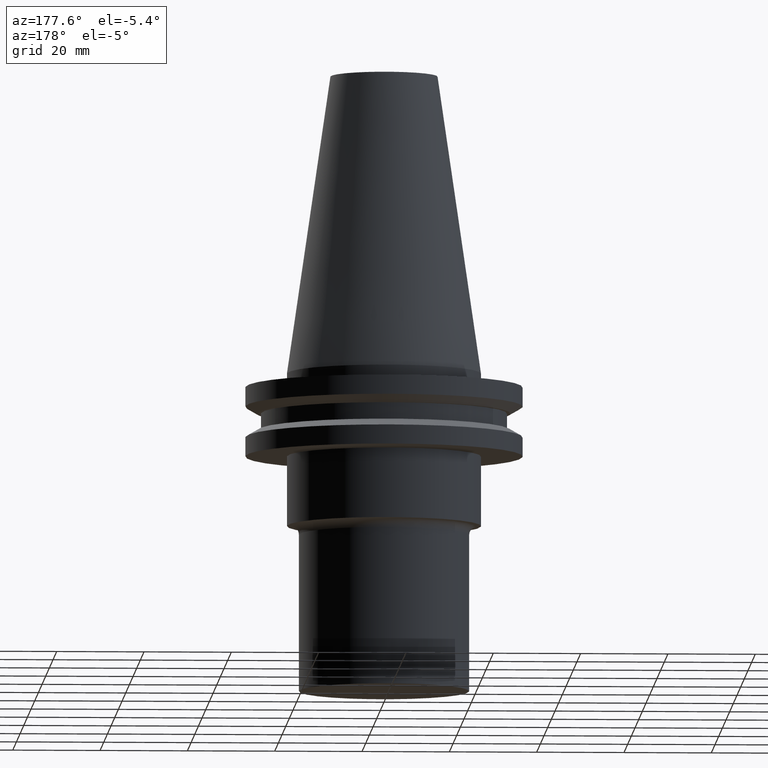
[diagram: clean part render]
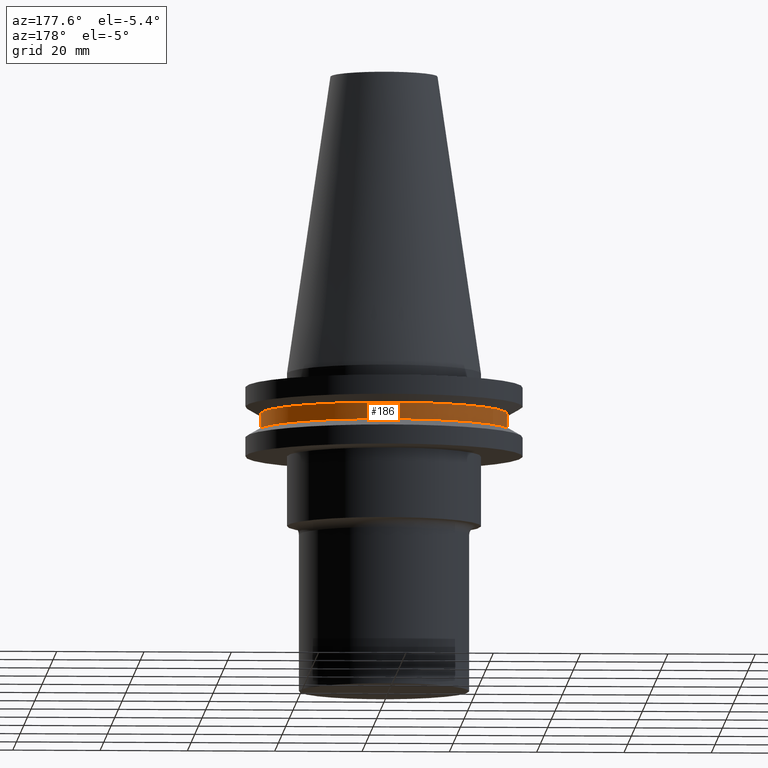
[diagram: same view with one face highlighted and labeled with its STEP entity id]
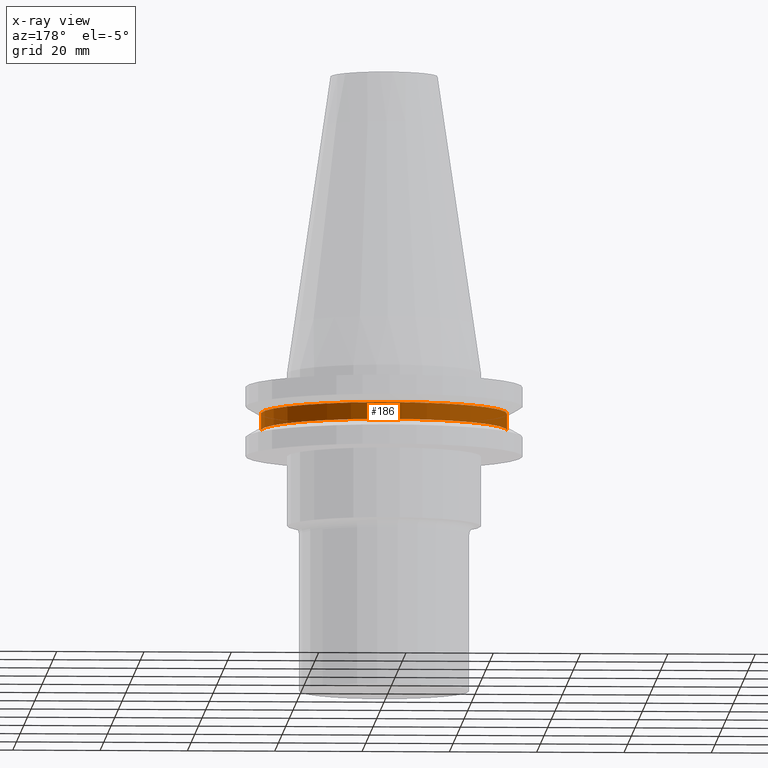
[diagram: x-ray of the same camera — body ghosted, the highlighted face saturated]
A machine part, auxiliary view. The second image highlights one B-rep face of the part: STEP entity #186.
The next image is the same camera in x-ray: the body ghosted, the highlighted face saturated — about 0% of this face is hidden behind the body in this view.
In plain terms, the highlighted cylindrical surface (partial cylindrical patch) has radius 28.18 mm, axis along (-0, -0, 1).
Its self-contained STEP definition (entity closure, byte-faithful):
#46 = FACE_OUTER_BOUND ( 'NONE', #449, .T. ) ;
#77 = CARTESIAN_POINT ( 'NONE',  ( -28.17999999999999972, 3.451054679997241634E-15, -13.05499999999999794 ) ) ;
#82 = DIRECTION ( 'NONE',  ( -0.000000000000000000, -0.000000000000000000, 1.000000000000000000 ) ) ;
#83 = EDGE_CURVE ( 'NONE', #308, #755, #751, .T. ) ;
#91 = DIRECTION ( 'NONE',  ( 1.000000000000000000, 0.000000000000000000, 0.000000000000000000 ) ) ;
#153 = CARTESIAN_POINT ( 'NONE',  ( 0.000000000000000000, 0.000000000000000000, -9.204999999999991189 ) ) ;
#161 = DIRECTION ( 'NONE',  ( 1.000000000000000000, 0.000000000000000000, 0.000000000000000000 ) ) ;
#163 = DIRECTION ( 'NONE',  ( -0.000000000000000000, -0.000000000000000000, 1.000000000000000000 ) ) ;
#173 = VECTOR ( 'NONE', #163, 1000.000000000000000 ) ;
#186 = ADVANCED_FACE ( 'NONE', ( #46 ), #227, .T. ) ;
#199 = VECTOR ( 'NONE', #82, 1000.000000000000000 ) ;
#227 = CYLINDRICAL_SURFACE ( 'NONE', #415, 28.17999999999999972 ) ;
#237 = CARTESIAN_POINT ( 'NONE',  ( 28.17999999999999972, 0.000000000000000000, -9.204999999999991189 ) ) ;
#239 = EDGE_CURVE ( 'NONE', #308, #413, #774, .T. ) ;
#262 = ORIENTED_EDGE ( 'NONE', *, *, #83, .F. ) ;
#279 = AXIS2_PLACEMENT_3D ( 'NONE', #446, #331, #565 ) ;
#308 = VERTEX_POINT ( 'NONE', #651 ) ;
#316 = CARTESIAN_POINT ( 'NONE',  ( 28.17999999999999972, 0.000000000000000000, 68.25000000000000000 ) ) ;
#331 = DIRECTION ( 'NONE',  ( -0.000000000000000000, -0.000000000000000000, 1.000000000000000000 ) ) ;
#394 = CARTESIAN_POINT ( 'NONE',  ( -28.17999999999999972, 3.451054679997241634E-15, 68.25000000000000000 ) ) ;
#413 = VERTEX_POINT ( 'NONE', #77 ) ;
#415 = AXIS2_PLACEMENT_3D ( 'NONE', #764, #569, #161 ) ;
#443 = LINE ( 'NONE', #394, #173 ) ;
#446 = CARTESIAN_POINT ( 'NONE',  ( 0.000000000000000000, 0.000000000000000000, -13.05499999999999794 ) ) ;
#449 = EDGE_LOOP ( 'NONE', ( #599, #482, #484, #262 ) ) ;
#482 = ORIENTED_EDGE ( 'NONE', *, *, #516, .T. ) ;
#484 = ORIENTED_EDGE ( 'NONE', *, *, #623, .F. ) ;
#516 = EDGE_CURVE ( 'NONE', #413, #632, #443, .T. ) ;
#562 = CIRCLE ( 'NONE', #577, 28.17999999999999972 ) ;
#565 = DIRECTION ( 'NONE',  ( 1.000000000000000000, 0.000000000000000000, 0.000000000000000000 ) ) ;
#569 = DIRECTION ( 'NONE',  ( -0.000000000000000000, -0.000000000000000000, 1.000000000000000000 ) ) ;
#577 = AXIS2_PLACEMENT_3D ( 'NONE', #153, #685, #91 ) ;
#599 = ORIENTED_EDGE ( 'NONE', *, *, #239, .T. ) ;
#623 = EDGE_CURVE ( 'NONE', #755, #632, #562, .T. ) ;
#632 = VERTEX_POINT ( 'NONE', #757 ) ;
#651 = CARTESIAN_POINT ( 'NONE',  ( 28.17999999999999972, 0.000000000000000000, -13.05499999999999794 ) ) ;
#685 = DIRECTION ( 'NONE',  ( -0.000000000000000000, -0.000000000000000000, 1.000000000000000000 ) ) ;
#751 = LINE ( 'NONE', #316, #199 ) ;
#755 = VERTEX_POINT ( 'NONE', #237 ) ;
#757 = CARTESIAN_POINT ( 'NONE',  ( -28.17999999999999972, 3.451054679997241634E-15, -9.204999999999991189 ) ) ;
#764 = CARTESIAN_POINT ( 'NONE',  ( 0.000000000000000000, 0.000000000000000000, 68.25000000000000000 ) ) ;
#774 = CIRCLE ( 'NONE', #279, 28.17999999999999972 ) ;